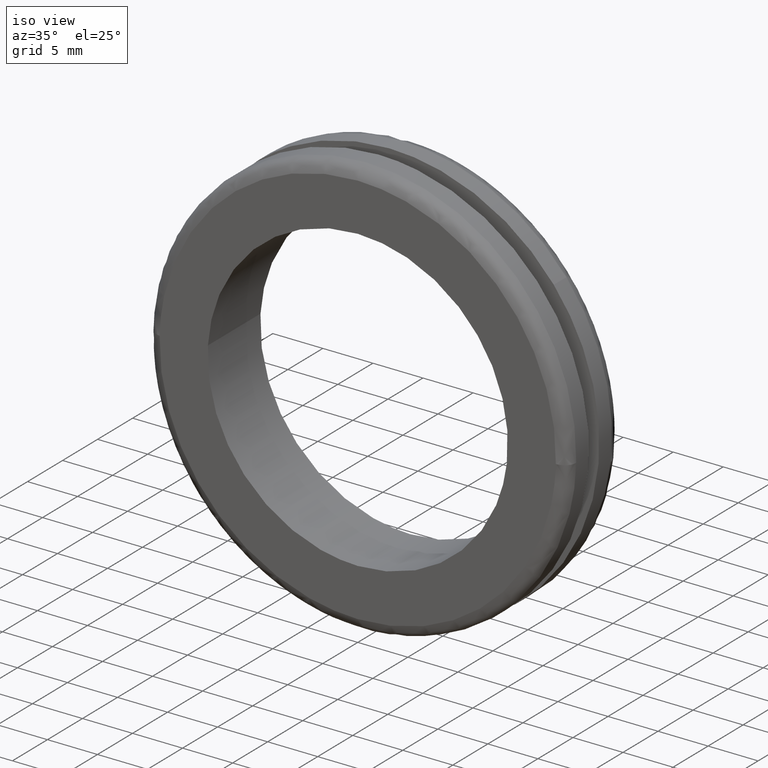
[diagram: clean part render]
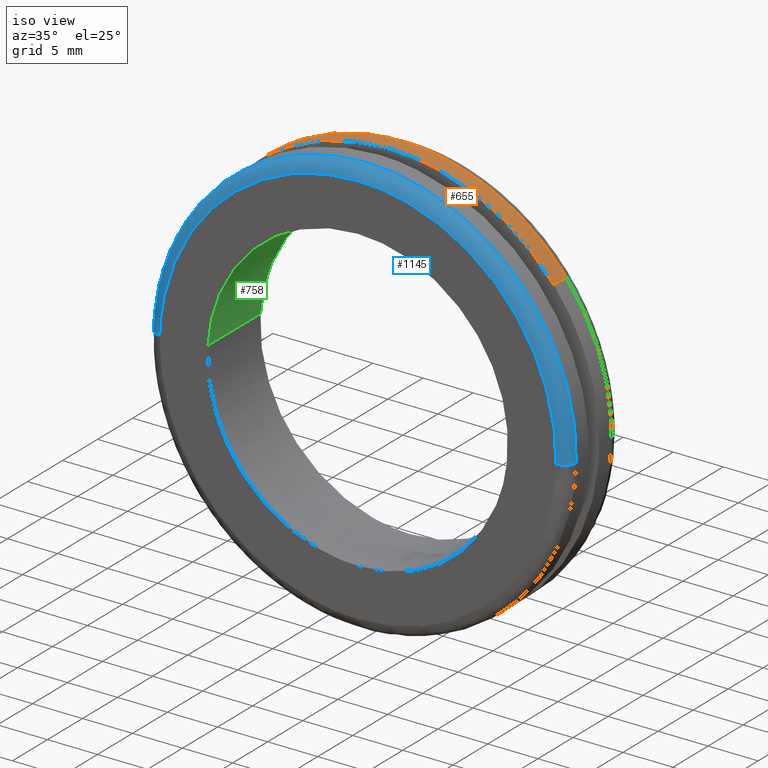
[diagram: same view with three faces highlighted in distinct colors, each labeled with its STEP entity id]
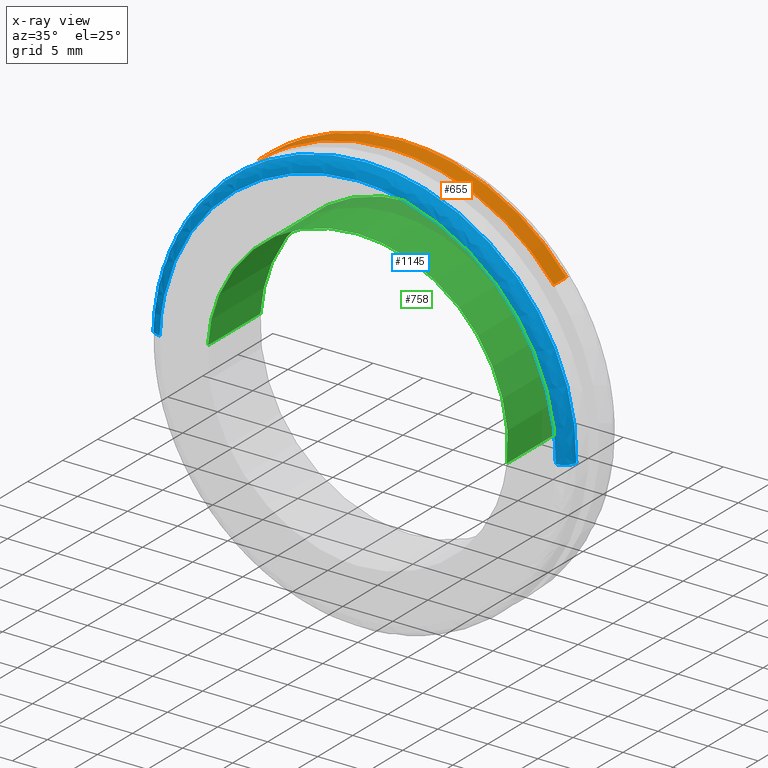
[diagram: x-ray of the same camera — body ghosted, the three highlighted faces saturated]
A machine part, iso view with three faces highlighted in distinct colors.
The next image is the same camera in x-ray (body ghosted, the three faces saturated) — at least one of them is partly hidden behind the body in this view.
Their STEP definitions:

[orange] entity #655 — the highlighted face is a freeform B-spline surface patch.
#468=CARTESIAN_POINT('',(-13.072806069207591,6.300000000011240,16.434772328112299));
#469=VERTEX_POINT('',#468);
#515=CARTESIAN_POINT('',(16.434772329288549,6.299999999999930,13.072806067728861));
#516=VERTEX_POINT('',#515);
#532=CARTESIAN_POINT('',(16.434772412118811,4.500000000000000,13.072805963596920));
#533=VERTEX_POINT('',#532);
#534=CARTESIAN_POINT('',(16.434772329288549,6.299999999999930,13.072806067728861));
#535=CARTESIAN_POINT('',(16.434772412118811,4.500000000000000,13.072805963596920));
#536=QUASI_UNIFORM_CURVE('',1,(#534,#535),.UNSPECIFIED.,.F.,.U.);
#537=EDGE_CURVE('',#516,#533,#536,.T.);
#556=CARTESIAN_POINT('',(-13.072806084870271,4.500000000000000,16.434772315653660));
#557=VERTEX_POINT('',#556);
#573=CARTESIAN_POINT('',(-13.072806069207591,6.300000000011240,16.434772328112299));
#574=CARTESIAN_POINT('',(-13.072806084870271,4.500000000000000,16.434772315653660));
#575=QUASI_UNIFORM_CURVE('',1,(#573,#574),.UNSPECIFIED.,.F.,.U.);
#576=EDGE_CURVE('',#469,#557,#575,.T.);
#581=CARTESIAN_POINT('',(16.434771293900688,6.345000000056996,13.072807369390009));
#582=CARTESIAN_POINT('',(3.361963924510681,6.345000000056996,29.507578663290690));
#583=CARTESIAN_POINT('',(-13.072807369390009,6.345000000056996,16.434771293900688));
#584=CARTESIAN_POINT('',(16.434771293900688,4.453874999998575,13.072807369390009));
#585=CARTESIAN_POINT('',(3.361963924510681,4.453874999998575,29.507578663290690));
#586=CARTESIAN_POINT('',(-13.072807369390009,4.453874999998575,16.434771293900688));
#594=(BOUNDED_SURFACE()B_SPLINE_SURFACE(2,1,((#581,#584),(#582,#585),(#583,#586)),.UNSPECIFIED.,.F.,.F.,.U.)B_SPLINE_SURFACE_WITH_KNOTS((3,3),(2,2),(0.0,34.793939239339977),(0.0,1.0),.UNSPECIFIED.)GEOMETRIC_REPRESENTATION_ITEM()RATIONAL_B_SPLINE_SURFACE(((1.0,1.0),(0.707106781186548,0.707106781186548),(1.0,1.0)))REPRESENTATION_ITEM('')SURFACE());
#595=CARTESIAN_POINT('',(0.0,6.300000000000000,21.0));
#596=VERTEX_POINT('',#595);
#597=CARTESIAN_POINT('',(0.0,6.300000000000000,21.0));
#598=CARTESIAN_POINT('',(-7.333527369877913,6.300000000000001,20.999999999999996));
#599=CARTESIAN_POINT('',(-13.072806069207587,6.300000000011240,16.434772328112302));
#607=(BOUNDED_CURVE()B_SPLINE_CURVE(2,(#597,#598,#599),.UNSPECIFIED.,.F.,.U.)B_SPLINE_CURVE_WITH_KNOTS((3,3),(0.500000000000000,0.607863865415925),.UNSPECIFIED.)CURVE()GEOMETRIC_REPRESENTATION_ITEM()RATIONAL_B_SPLINE_CURVE((1.0,0.873629621058675,0.856305622490842))REPRESENTATION_ITEM(''));
#608=EDGE_CURVE('',#596,#469,#607,.T.);
#609=ORIENTED_EDGE('',*,*,#608,.T.);
#610=ORIENTED_EDGE('',*,*,#576,.T.);
#611=CARTESIAN_POINT('',(0.0,4.500000000000000,21.0));
#612=VERTEX_POINT('',#611);
#613=CARTESIAN_POINT('',(0.0,4.500000000000000,21.0));
#614=CARTESIAN_POINT('',(-7.333527381104963,4.499999999999999,21.000000000000004));
#615=CARTESIAN_POINT('',(-13.072806084870265,4.500000000000000,16.434772315653660));
#623=(BOUNDED_CURVE()B_SPLINE_CURVE(2,(#613,#614,#615),.UNSPECIFIED.,.F.,.U.)B_SPLINE_CURVE_WITH_KNOTS((3,3),(0.500000000000000,0.607863865560188),.UNSPECIFIED.)CURVE()GEOMETRIC_REPRESENTATION_ITEM()RATIONAL_B_SPLINE_CURVE((1.0,0.873629620889660,0.856305622444502))REPRESENTATION_ITEM(''));
#624=EDGE_CURVE('',#612,#557,#623,.T.);
#625=ORIENTED_EDGE('',*,*,#624,.F.);
#626=CARTESIAN_POINT('',(16.434772412118814,4.500000000000000,13.072805963596918));
#627=CARTESIAN_POINT('',(10.129198664272909,4.500000000000000,21.000000000000004));
#628=CARTESIAN_POINT('',(0.0,4.500000000000000,21.0));
#636=(BOUNDED_CURVE()B_SPLINE_CURVE(2,(#626,#627,#628),.UNSPECIFIED.,.F.,.U.)B_SPLINE_CURVE_WITH_KNOTS((3,3),(0.357863864443182,0.500000000000000),.UNSPECIFIED.)CURVE()GEOMETRIC_REPRESENTATION_ITEM()RATIONAL_B_SPLINE_CURVE((0.856305622803306,0.833477158988234,1.0))REPRESENTATION_ITEM(''));
#637=EDGE_CURVE('',#533,#612,#636,.T.);
#638=ORIENTED_EDGE('',*,*,#637,.F.);
#639=ORIENTED_EDGE('',*,*,#537,.F.);
#640=CARTESIAN_POINT('',(16.434772329288549,6.299999999999930,13.072806067728857));
#641=CARTESIAN_POINT('',(10.129198582265900,6.299999999999999,21.0));
#642=CARTESIAN_POINT('',(0.0,6.300000000000000,21.0));
#650=(BOUNDED_CURVE()B_SPLINE_CURVE(2,(#640,#641,#642),.UNSPECIFIED.,.F.,.U.)B_SPLINE_CURVE_WITH_KNOTS((3,3),(0.357863865402305,0.500000000000000),.UNSPECIFIED.)CURVE()GEOMETRIC_REPRESENTATION_ITEM()RATIONAL_B_SPLINE_CURVE((0.856305622495217,0.833477160111916,1.0))REPRESENTATION_ITEM(''));
#651=EDGE_CURVE('',#516,#596,#650,.T.);
#652=ORIENTED_EDGE('',*,*,#651,.T.);
#653=EDGE_LOOP('',(#609,#610,#625,#638,#639,#652));
#654=FACE_OUTER_BOUND('',#653,.T.);
#655=ADVANCED_FACE('',(#654),#594,.T.);

[blue] entity #1145 — the highlighted face is a freeform B-spline surface patch.
#115=CARTESIAN_POINT('',(-14.187393490254490,1.199999999972146,15.482824869922180));
#116=VERTEX_POINT('',#115);
#122=CARTESIAN_POINT('',(0.0,1.200000000000000,21.0));
#123=VERTEX_POINT('',#122);
#124=CARTESIAN_POINT('',(0.0,1.200000000000000,21.0));
#125=CARTESIAN_POINT('',(-8.166452689933331,1.200000000000000,21.000000000000004));
#126=CARTESIAN_POINT('',(-14.187393490254468,1.199999999972103,15.482824869922169));
#134=(BOUNDED_CURVE()B_SPLINE_CURVE(2,(#124,#125,#126),.UNSPECIFIED.,.F.,.U.)B_SPLINE_CURVE_WITH_KNOTS((3,3),(0.500000000000000,0.618415200604597),.UNSPECIFIED.)CURVE()GEOMETRIC_REPRESENTATION_ITEM()RATIONAL_B_SPLINE_CURVE((1.0,0.861267962953915,0.853959781884603))REPRESENTATION_ITEM(''));
#135=EDGE_CURVE('',#123,#116,#134,.T.);
#137=CARTESIAN_POINT('',(20.993367974949280,1.199999999896488,-0.527732004310620));
#138=VERTEX_POINT('',#137);
#139=CARTESIAN_POINT('',(20.993367974949287,1.199999999896487,-0.527732004310620));
#140=CARTESIAN_POINT('',(21.000000000000004,1.200000000000000,-0.263907674591506));
#141=CARTESIAN_POINT('',(21.0,1.200000000000000,-3.061516E-016));
#142=CARTESIAN_POINT('',(21.000000000000007,1.200000000000000,21.000000000000007));
#143=CARTESIAN_POINT('',(0.0,1.200000000000000,21.0));
#151=(BOUNDED_CURVE()B_SPLINE_CURVE(2,(#139,#140,#141,#142,#143),.UNSPECIFIED.,.F.,.U.)B_SPLINE_CURVE_WITH_KNOTS((3,2,3),(0.245579891769799,0.250000000000000,0.500000000000000),.UNSPECIFIED.)CURVE()GEOMETRIC_REPRESENTATION_ITEM()RATIONAL_B_SPLINE_CURVE((0.989826157681556,0.994821521091810,1.0,0.707106781186547,1.0))REPRESENTATION_ITEM(''));
#152=EDGE_CURVE('',#138,#123,#151,.T.);
#226=CARTESIAN_POINT('',(-20.993367974949280,1.199999999896488,0.527732004310620));
#227=VERTEX_POINT('',#226);
#243=CARTESIAN_POINT('',(-14.187393490254468,1.199999999972103,15.482824869922169));
#244=CARTESIAN_POINT('',(-20.769032832560868,1.199999999941611,9.451864244536521));
#245=CARTESIAN_POINT('',(-20.993367974949276,1.199999999896488,0.527732004310620));
#253=(BOUNDED_CURVE()B_SPLINE_CURVE(2,(#243,#244,#245),.UNSPECIFIED.,.F.,.U.)B_SPLINE_CURVE_WITH_KNOTS((3,3),(0.618415200604597,0.745579891769798),.UNSPECIFIED.)CURVE()GEOMETRIC_REPRESENTATION_ITEM()RATIONAL_B_SPLINE_CURVE((0.853959781884603,0.846111612190902,0.989826157681555))REPRESENTATION_ITEM(''));
#254=EDGE_CURVE('',#116,#227,#253,.T.);
#1022=CARTESIAN_POINT('',(19.793746948737748,-1.553015E-015,-0.497575889833101));
#1023=VERTEX_POINT('',#1022);
#1024=CARTESIAN_POINT('',(20.993367974949280,1.199999999896489,-0.527732004310620));
#1025=CARTESIAN_POINT('',(20.993367974742334,1.859005E-009,-0.527732004304883));
#1026=CARTESIAN_POINT('',(19.793746948737745,-1.553015E-015,-0.497575889833101));
#1034=(BOUNDED_CURVE()B_SPLINE_CURVE(2,(#1024,#1025,#1026),.UNSPECIFIED.,.F.,.U.)B_SPLINE_CURVE_WITH_KNOTS((3,3),(-1.723441281807144,-0.263586880531164),.UNSPECIFIED.)CURVE()GEOMETRIC_REPRESENTATION_ITEM()RATIONAL_B_SPLINE_CURVE((0.883897567076061,0.626638727551946,0.888510408487331))REPRESENTATION_ITEM(''));
#1035=EDGE_CURVE('',#138,#1023,#1034,.T.);
#1052=CARTESIAN_POINT('',(-19.793746948737748,-1.568634E-015,0.497575889833109));
#1053=VERTEX_POINT('',#1052);
#1069=CARTESIAN_POINT('',(-20.993367974949280,1.199999999896487,0.527732004310620));
#1070=CARTESIAN_POINT('',(-20.993367974742345,1.859006E-009,0.527732004304885));
#1071=CARTESIAN_POINT('',(-19.793746948737752,-1.568634E-015,0.497575889833109));
#1079=(BOUNDED_CURVE()B_SPLINE_CURVE(2,(#1069,#1070,#1071),.UNSPECIFIED.,.F.,.U.)B_SPLINE_CURVE_WITH_KNOTS((3,3),(-1.723441281807144,-0.263586880531165),.UNSPECIFIED.)CURVE()GEOMETRIC_REPRESENTATION_ITEM()RATIONAL_B_SPLINE_CURVE((0.883897567076061,0.626638727551946,0.888510408487331))REPRESENTATION_ITEM(''));
#1080=EDGE_CURVE('',#227,#1053,#1079,.T.);
#1085=CARTESIAN_POINT('',(20.990448453942729,1.283669199614412,-0.527658613290871));
#1086=CARTESIAN_POINT('',(21.518107067233593,1.283669199614412,20.462789840651851));
#1087=CARTESIAN_POINT('',(0.527658613290872,1.283669199614412,20.990448453942729));
#1088=CARTESIAN_POINT('',(-20.462789840651851,1.283669199614412,21.518107067233608));
#1089=CARTESIAN_POINT('',(-20.990448453942729,1.283669199614412,0.527658613290874));
#1090=CARTESIAN_POINT('',(21.086625869068445,-0.092803736712181,-0.530076324451568));
#1091=CARTESIAN_POINT('',(21.616702193520013,-0.092803736712181,20.556549544616878));
#1092=CARTESIAN_POINT('',(0.530076324451570,-0.092803736712181,21.086625869068445));
#1093=CARTESIAN_POINT('',(-20.556549544616878,-0.092803736712181,21.616702193520013));
#1094=CARTESIAN_POINT('',(-21.086625869068445,-0.092803736712181,0.530076324451571));
#1095=CARTESIAN_POINT('',(19.710551762087665,0.002889233499369,-0.495484526345484));
#1096=CARTESIAN_POINT('',(20.206036288433165,0.002889233499369,19.215067235742190));
#1097=CARTESIAN_POINT('',(0.495484526345486,0.002889233499369,19.710551762087665));
#1098=CARTESIAN_POINT('',(-19.215067235742190,0.002889233499369,20.206036288433165));
#1099=CARTESIAN_POINT('',(-19.710551762087665,0.002889233499369,0.495484526345487));
#1107=(BOUNDED_SURFACE()B_SPLINE_SURFACE(2,2,((#1085,#1090,#1095),(#1086,#1091,#1096),(#1087,#1092,#1097),(#1088,#1093,#1098),(#1089,#1094,#1099)),.UNSPECIFIED.,.F.,.F.,.U.)B_SPLINE_SURFACE_WITH_KNOTS((3,2,3),(3,3),(0.0,34.789100490425007,69.578200980850013),(0.0,2.186845548512761),.UNSPECIFIED.)GEOMETRIC_REPRESENTATION_ITEM()RATIONAL_B_SPLINE_SURFACE(((0.910893002652437,0.599412768279433,0.915966895101402),(0.644098619110914,0.423848833180188,0.647686402868588),(0.910893002652437,0.599412768279433,0.915966895101402),(0.644098619110914,0.423848833180188,0.647686402868588),(0.910893002652437,0.599412768279433,0.915966895101402)))REPRESENTATION_ITEM('')SURFACE());
#1108=ORIENTED_EDGE('',*,*,#135,.T.);
#1109=ORIENTED_EDGE('',*,*,#254,.T.);
#1110=ORIENTED_EDGE('',*,*,#1080,.T.);
#1111=CARTESIAN_POINT('',(0.0,-3.637081E-015,19.800000000000001));
#1112=VERTEX_POINT('',#1111);
#1113=CARTESIAN_POINT('',(0.0,-3.637081E-015,19.800000000000001));
#1114=CARTESIAN_POINT('',(-19.308521948315036,-3.637081E-015,19.800000000000004));
#1115=CARTESIAN_POINT('',(-19.793746948737752,-1.568634E-015,0.497575889833109));
#1123=(BOUNDED_CURVE()B_SPLINE_CURVE(2,(#1113,#1114,#1115),.UNSPECIFIED.,.F.,.U.)B_SPLINE_CURVE_WITH_KNOTS((3,3),(0.500000000000000,0.745579891769248),.UNSPECIFIED.)CURVE()GEOMETRIC_REPRESENTATION_ITEM()RATIONAL_B_SPLINE_CURVE((1.0,0.712285260095383,0.989826157680310))REPRESENTATION_ITEM(''));
#1124=EDGE_CURVE('',#1112,#1053,#1123,.T.);
#1125=ORIENTED_EDGE('',*,*,#1124,.F.);
#1126=CARTESIAN_POINT('',(19.793746948737745,-1.553015E-015,-0.497575889833101));
#1127=CARTESIAN_POINT('',(19.800000000000001,-3.637081E-015,-0.248827236074592));
#1128=CARTESIAN_POINT('',(19.800000000000001,-3.637081E-015,-3.061516E-016));
#1129=CARTESIAN_POINT('',(19.800000000000001,-3.637081E-015,19.800000000000001));
#1130=CARTESIAN_POINT('',(0.0,-3.637081E-015,19.800000000000001));
#1138=(BOUNDED_CURVE()B_SPLINE_CURVE(2,(#1126,#1127,#1128,#1129,#1130),.UNSPECIFIED.,.F.,.U.)B_SPLINE_CURVE_WITH_KNOTS((3,2,3),(0.245579891769248,0.250000000000000,0.500000000000000),.UNSPECIFIED.)CURVE()GEOMETRIC_REPRESENTATION_ITEM()RATIONAL_B_SPLINE_CURVE((0.989826157680311,0.994821521091165,1.0,0.707106781186547,1.0))REPRESENTATION_ITEM(''));
#1139=EDGE_CURVE('',#1023,#1112,#1138,.T.);
#1140=ORIENTED_EDGE('',*,*,#1139,.F.);
#1141=ORIENTED_EDGE('',*,*,#1035,.F.);
#1142=ORIENTED_EDGE('',*,*,#152,.T.);
#1143=EDGE_LOOP('',(#1108,#1109,#1110,#1125,#1140,#1141,#1142));
#1144=FACE_OUTER_BOUND('',#1143,.T.);
#1145=ADVANCED_FACE('',(#1144),#1107,.T.);

[green] entity #758 — the highlighted face is a freeform B-spline surface patch.
#656=CARTESIAN_POINT('',(14.895142895454988,7.687500000000003,-1.770513519851377));
#657=CARTESIAN_POINT('',(14.945814231729083,7.687500000000002,-1.344220929569665));
#658=CARTESIAN_POINT('',(14.972021976328000,7.687500000000001,-0.915728093022855));
#659=CARTESIAN_POINT('',(15.887750069350853,7.687500000000001,14.056293883305147));
#660=CARTESIAN_POINT('',(0.915728093022855,7.687500000000001,14.972021976328000));
#661=CARTESIAN_POINT('',(-14.056293883305147,7.687500000000001,15.887750069350853));
#662=CARTESIAN_POINT('',(-14.972021976328000,7.687500000000001,0.915728093022854));
#663=CARTESIAN_POINT('',(14.895142895454988,-0.192187500000004,-1.770513519851377));
#664=CARTESIAN_POINT('',(14.945814231729083,-0.192187500000004,-1.344220929569665));
#665=CARTESIAN_POINT('',(14.972021976328000,-0.192187500000004,-0.915728093022855));
#666=CARTESIAN_POINT('',(15.887750069350853,-0.192187500000004,14.056293883305147));
#667=CARTESIAN_POINT('',(0.915728093022855,-0.192187500000004,14.972021976328000));
#668=CARTESIAN_POINT('',(-14.056293883305147,-0.192187500000004,15.887750069350853));
#669=CARTESIAN_POINT('',(-14.972021976328000,-0.192187500000004,0.915728093022854));
#677=(BOUNDED_SURFACE()B_SPLINE_SURFACE(2,1,((#656,#663),(#657,#664),(#658,#665),(#659,#666),(#660,#667),(#661,#668),(#662,#669)),.UNSPECIFIED.,.F.,.F.,.U.)B_SPLINE_SURFACE_WITH_KNOTS((3,2,2,3),(2,2),(0.0,0.994112549695429,25.846926292081129,50.699740034466821),(0.0,7.879687500000007),.UNSPECIFIED.)GEOMETRIC_REPRESENTATION_ITEM()RATIONAL_B_SPLINE_SURFACE(((0.977505800795127,0.977505800795127),(0.988284271247462,0.988284271247462),(1.0,1.0),(0.707106781186548,0.707106781186548),(1.0,1.0),(0.707106781186548,0.707106781186548),(1.0,1.0)))REPRESENTATION_ITEM('')SURFACE());
#678=CARTESIAN_POINT('',(14.895144575568130,7.500000000000112,-1.770499385122951));
#679=VERTEX_POINT('',#678);
#680=CARTESIAN_POINT('',(0.0,7.500000000000000,15.0));
#681=VERTEX_POINT('',#680);
#682=CARTESIAN_POINT('',(14.895144575568130,7.500000000000112,-1.770499385122952));
#683=CARTESIAN_POINT('',(15.000000000000002,7.500000000000000,-0.888354652700172));
#684=CARTESIAN_POINT('',(15.0,7.500000000000000,-3.061516E-016));
#685=CARTESIAN_POINT('',(14.999999999999996,7.500000000000000,14.999999999999996));
#686=CARTESIAN_POINT('',(0.0,7.500000000000000,15.0));
#694=(BOUNDED_CURVE()B_SPLINE_CURVE(2,(#682,#683,#684,#685,#686),.UNSPECIFIED.,.F.,.U.)B_SPLINE_CURVE_WITH_KNOTS((3,2,3),(0.229562633891089,0.250000000000000,0.500000000000000),.UNSPECIFIED.)CURVE()GEOMETRIC_REPRESENTATION_ITEM()RATIONAL_B_SPLINE_CURVE((0.956027068530562,0.976056136225169,1.0,0.707106781186547,1.0))REPRESENTATION_ITEM(''));
#695=EDGE_CURVE('',#679,#681,#694,.T.);
#696=ORIENTED_EDGE('',*,*,#695,.F.);
#697=CARTESIAN_POINT('',(14.895144555315481,-1.789399E-015,-1.770499555509084));
#698=VERTEX_POINT('',#697);
#699=CARTESIAN_POINT('',(14.895144575568130,7.500000000000112,-1.770499385122951));
#700=CARTESIAN_POINT('',(14.895144555315481,-1.789399E-015,-1.770499555509084));
#701=QUASI_UNIFORM_CURVE('',1,(#699,#700),.UNSPECIFIED.,.F.,.U.);
#702=EDGE_CURVE('',#679,#698,#701,.T.);
#703=ORIENTED_EDGE('',*,*,#702,.T.);
#704=CARTESIAN_POINT('',(0.0,-2.755364E-015,15.0));
#705=VERTEX_POINT('',#704);
#706=CARTESIAN_POINT('',(14.895144555315476,-1.789399E-015,-1.770499555509084));
#707=CARTESIAN_POINT('',(14.999999999999998,-2.755364E-015,-0.888354738793865));
#708=CARTESIAN_POINT('',(15.0,-2.755364E-015,-3.061516E-016));
#709=CARTESIAN_POINT('',(14.999999999999996,-2.755364E-015,14.999999999999996));
#710=CARTESIAN_POINT('',(0.0,-2.755364E-015,15.0));
#718=(BOUNDED_CURVE()B_SPLINE_CURVE(2,(#706,#707,#708,#709,#710),.UNSPECIFIED.,.F.,.U.)B_SPLINE_CURVE_WITH_KNOTS((3,2,3),(0.229562631957854,0.250000000000000,0.500000000000000),.UNSPECIFIED.)CURVE()GEOMETRIC_REPRESENTATION_ITEM()RATIONAL_B_SPLINE_CURVE((0.956027064741336,0.976056133960243,1.0,0.707106781186547,1.0))REPRESENTATION_ITEM(''));
#719=EDGE_CURVE('',#698,#705,#718,.T.);
#720=ORIENTED_EDGE('',*,*,#719,.T.);
#721=CARTESIAN_POINT('',(-14.972022853837400,-2.224227E-015,0.915713745645394));
#722=VERTEX_POINT('',#721);
#723=CARTESIAN_POINT('',(0.0,-2.755364E-015,15.0));
#724=CARTESIAN_POINT('',(-14.110604550744977,-2.755364E-015,15.0));
#725=CARTESIAN_POINT('',(-14.972022853837398,-2.224227E-015,0.915713745645394));
#733=(BOUNDED_CURVE()B_SPLINE_CURVE(2,(#723,#724,#725),.UNSPECIFIED.,.F.,.U.)B_SPLINE_CURVE_WITH_KNOTS((3,3),(0.500000000000000,0.739333127589991),.UNSPECIFIED.)CURVE()GEOMETRIC_REPRESENTATION_ITEM()RATIONAL_B_SPLINE_CURVE((1.0,0.719603799565907,0.976072396045746))REPRESENTATION_ITEM(''));
#734=EDGE_CURVE('',#705,#722,#733,.T.);
#735=ORIENTED_EDGE('',*,*,#734,.T.);
#736=CARTESIAN_POINT('',(-14.972022864544920,7.500000000000110,0.915713570573430));
#737=VERTEX_POINT('',#736);
#738=CARTESIAN_POINT('',(-14.972022864544920,7.500000000000110,0.915713570573430));
#739=CARTESIAN_POINT('',(-14.972022853837400,-2.224227E-015,0.915713745645394));
#740=QUASI_UNIFORM_CURVE('',1,(#738,#739),.UNSPECIFIED.,.F.,.U.);
#741=EDGE_CURVE('',#737,#722,#740,.T.);
#742=ORIENTED_EDGE('',*,*,#741,.F.);
#743=CARTESIAN_POINT('',(0.0,7.500000000000000,15.0));
#744=CARTESIAN_POINT('',(-14.110604716052444,7.499999999999999,15.0));
#745=CARTESIAN_POINT('',(-14.972022864544918,7.500000000000110,0.915713570573430));
#753=(BOUNDED_CURVE()B_SPLINE_CURVE(2,(#743,#744,#745),.UNSPECIFIED.,.F.,.U.)B_SPLINE_CURVE_WITH_KNOTS((3,3),(0.500000000000000,0.739333129607628),.UNSPECIFIED.)CURVE()GEOMETRIC_REPRESENTATION_ITEM()RATIONAL_B_SPLINE_CURVE((1.0,0.719603797202098,0.976072400369933))REPRESENTATION_ITEM(''));
#754=EDGE_CURVE('',#681,#737,#753,.T.);
#755=ORIENTED_EDGE('',*,*,#754,.F.);
#756=EDGE_LOOP('',(#696,#703,#720,#735,#742,#755));
#757=FACE_OUTER_BOUND('',#756,.T.);
#758=ADVANCED_FACE('',(#757),#677,.F.);